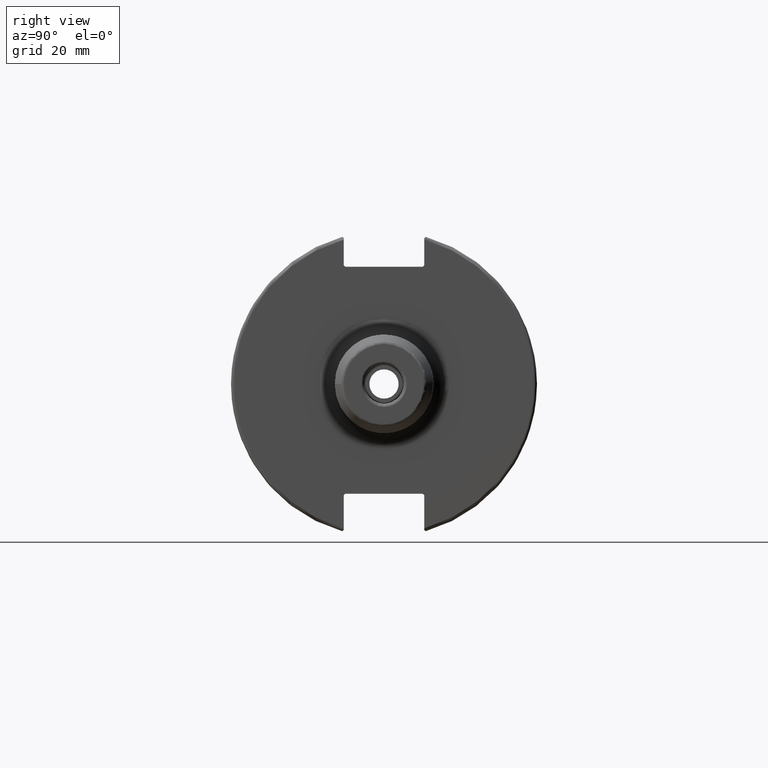
[diagram: clean part render]
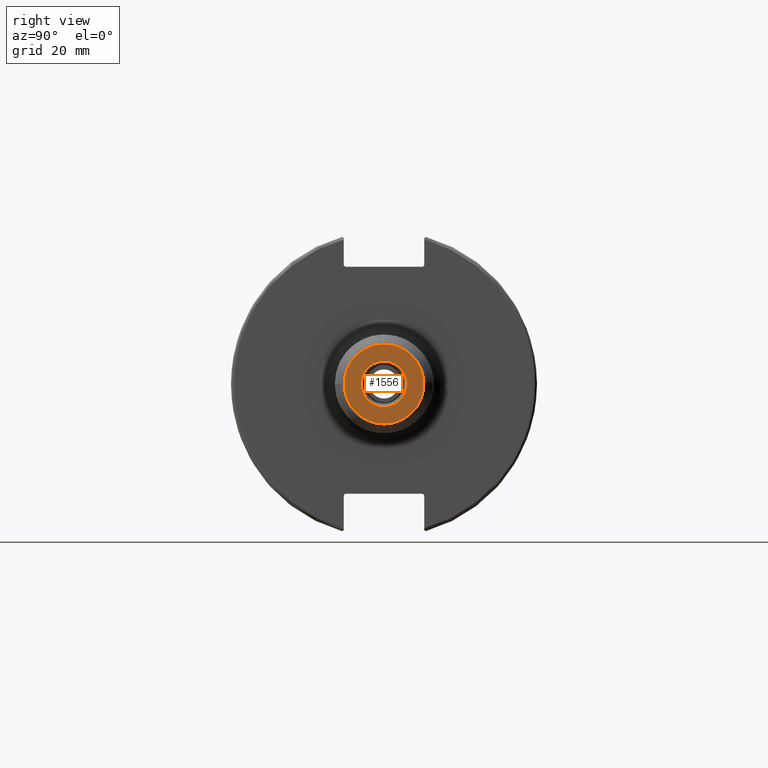
[diagram: same view with one face highlighted and labeled with its STEP entity id]
A machine part, right view. The second image highlights one B-rep face of the part: STEP entity #1556.
In plain terms, the highlighted planar face has unit normal (1, 0, 0).
Its self-contained STEP definition (entity closure, byte-faithful):
#60=FACE_BOUND('',#215,.T.);
#81=PLANE('',#1675);
#123=FACE_OUTER_BOUND('',#214,.T.);
#214=EDGE_LOOP('',(#1058));
#215=EDGE_LOOP('',(#1059));
#557=CIRCLE('',#1674,7.35);
#558=CIRCLE('',#1676,12.8629297391925);
#644=VERTEX_POINT('',#2388);
#645=VERTEX_POINT('',#2392);
#810=EDGE_CURVE('',#644,#644,#557,.T.);
#811=EDGE_CURVE('',#645,#645,#558,.T.);
#1058=ORIENTED_EDGE('',*,*,#811,.F.);
#1059=ORIENTED_EDGE('',*,*,#810,.F.);
#1556=ADVANCED_FACE('',(#123,#60),#81,.T.);
#1674=AXIS2_PLACEMENT_3D('',#2390,#1863,#1864);
#1675=AXIS2_PLACEMENT_3D('',#2391,#1865,#1866);
#1676=AXIS2_PLACEMENT_3D('',#2393,#1867,#1868);
#1863=DIRECTION('center_axis',(1.,0.,0.));
#1864=DIRECTION('ref_axis',(0.,-1.,1.83697019872103E-16));
#1865=DIRECTION('center_axis',(1.,0.,0.));
#1866=DIRECTION('ref_axis',(0.,0.,-1.));
#1867=DIRECTION('center_axis',(-1.,0.,0.));
#1868=DIRECTION('ref_axis',(0.,-1.,1.83697019872103E-16));
#2388=CARTESIAN_POINT('',(90.,-9.00115397373305E-16,7.35));
#2390=CARTESIAN_POINT('Origin',(90.,0.,0.));
#2391=CARTESIAN_POINT('Origin',(90.,6.35000000000001,0.));
#2392=CARTESIAN_POINT('',(90.,-1.57525457327594E-15,12.8629297391925));
#2393=CARTESIAN_POINT('Origin',(90.,0.,0.));